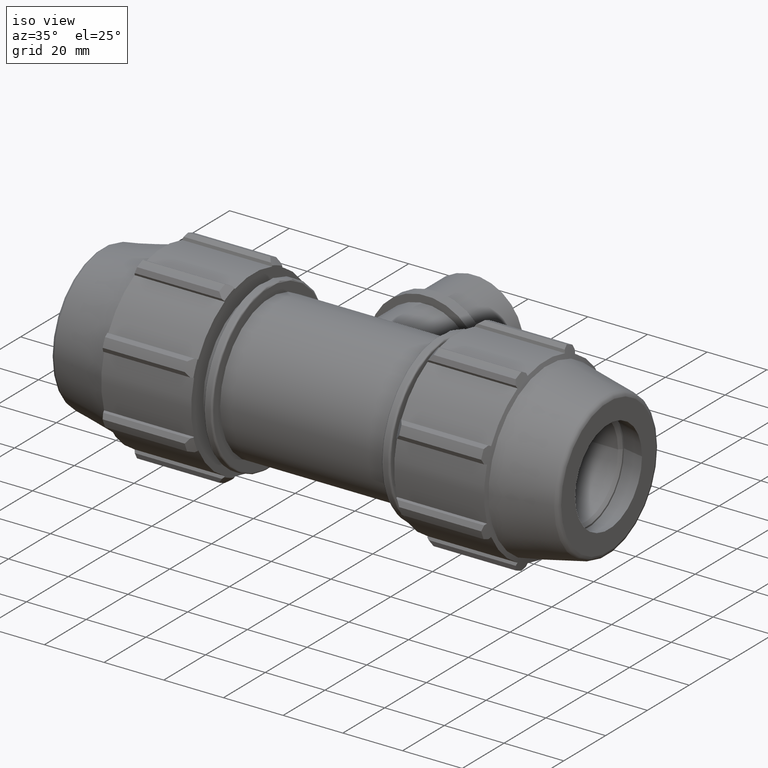
[diagram: clean part render]
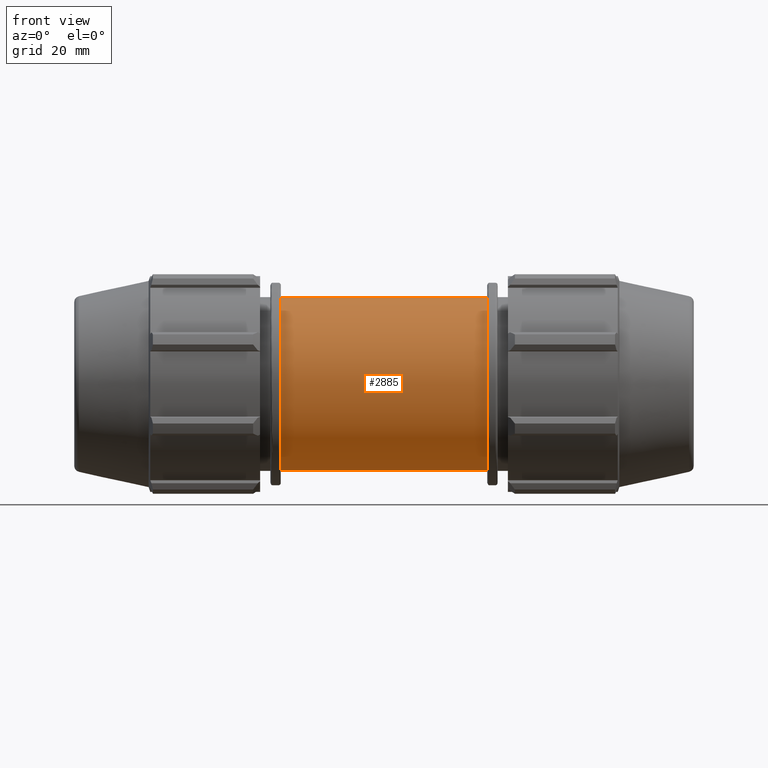
[diagram: tour spotlight — one face highlighted and labeled with its STEP entity id]
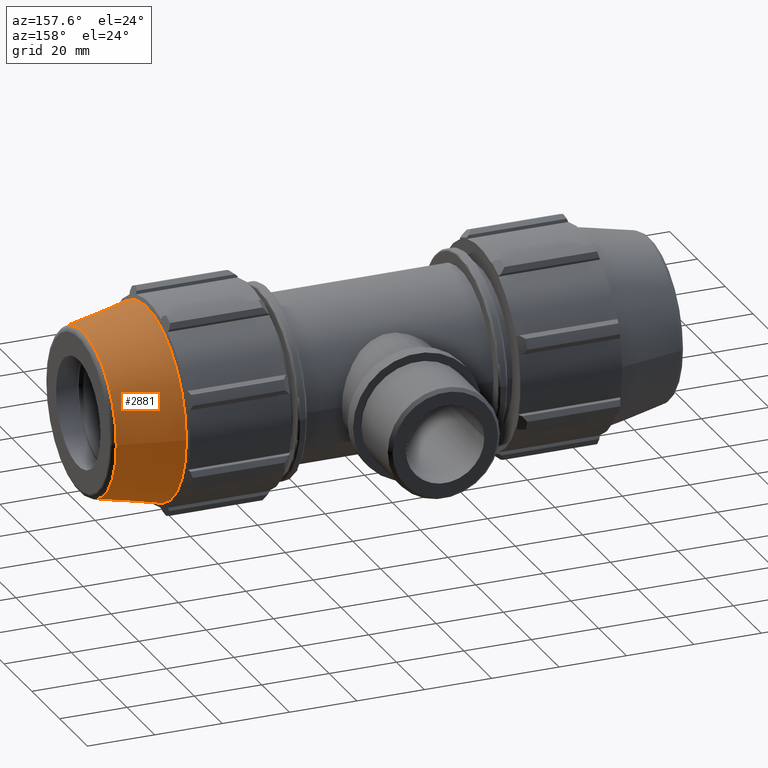
[diagram: tour spotlight — one face highlighted and labeled with its STEP entity id]
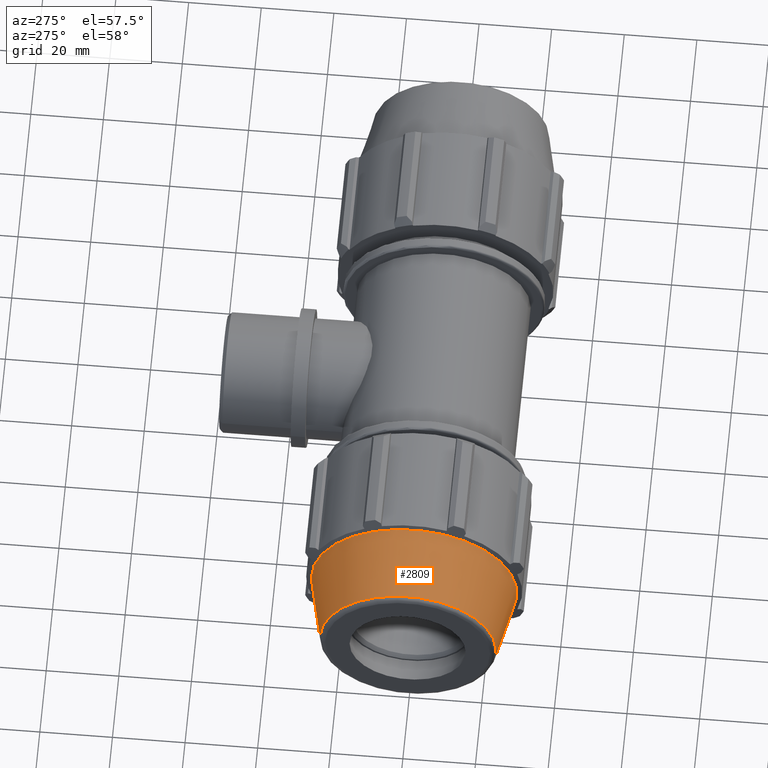
[diagram: tour spotlight — one face highlighted and labeled with its STEP entity id]
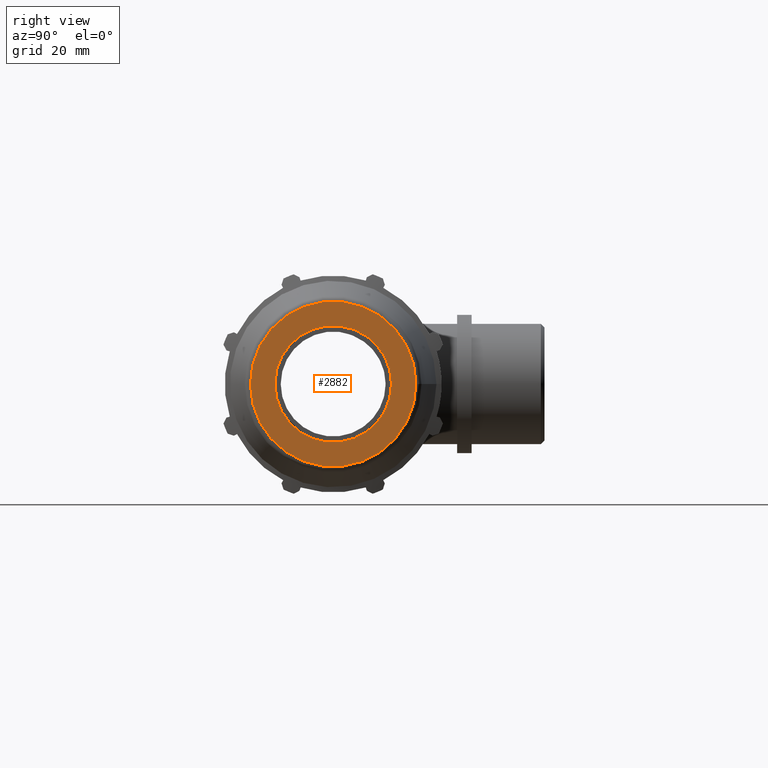
[diagram: tour spotlight — one face highlighted and labeled with its STEP entity id]
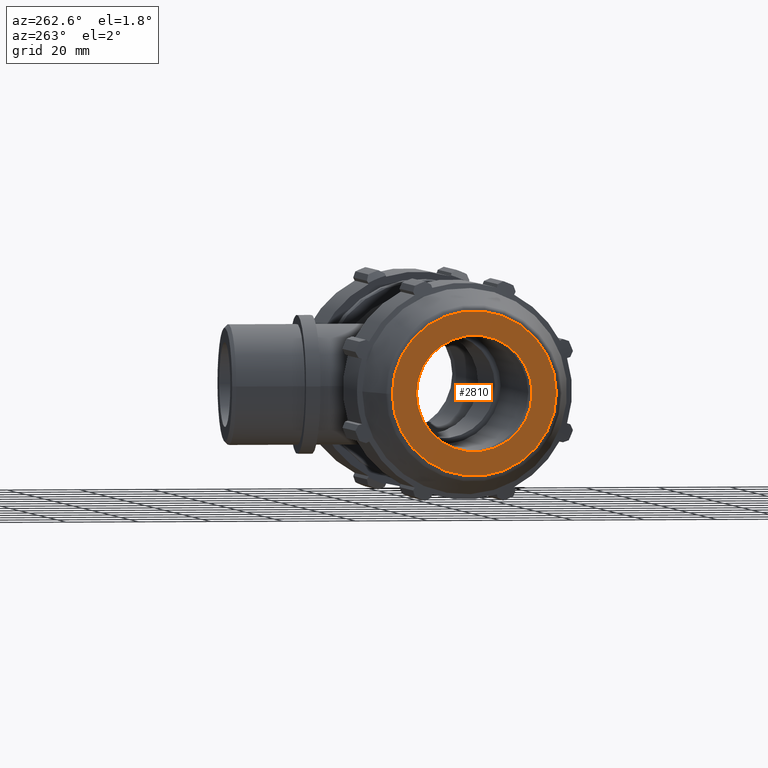
[diagram: tour spotlight — one face highlighted and labeled with its STEP entity id]
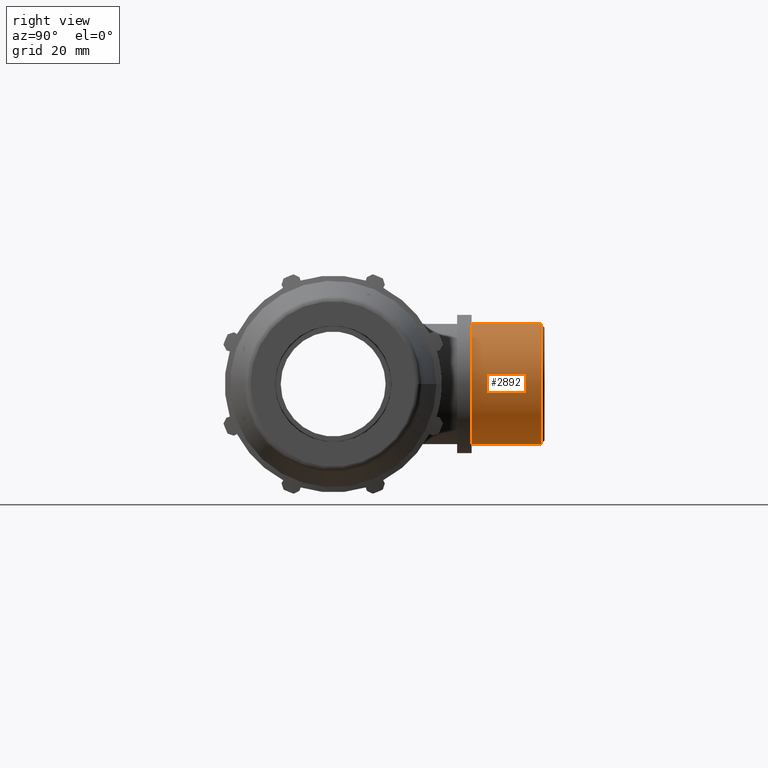
[diagram: tour spotlight — one face highlighted and labeled with its STEP entity id]
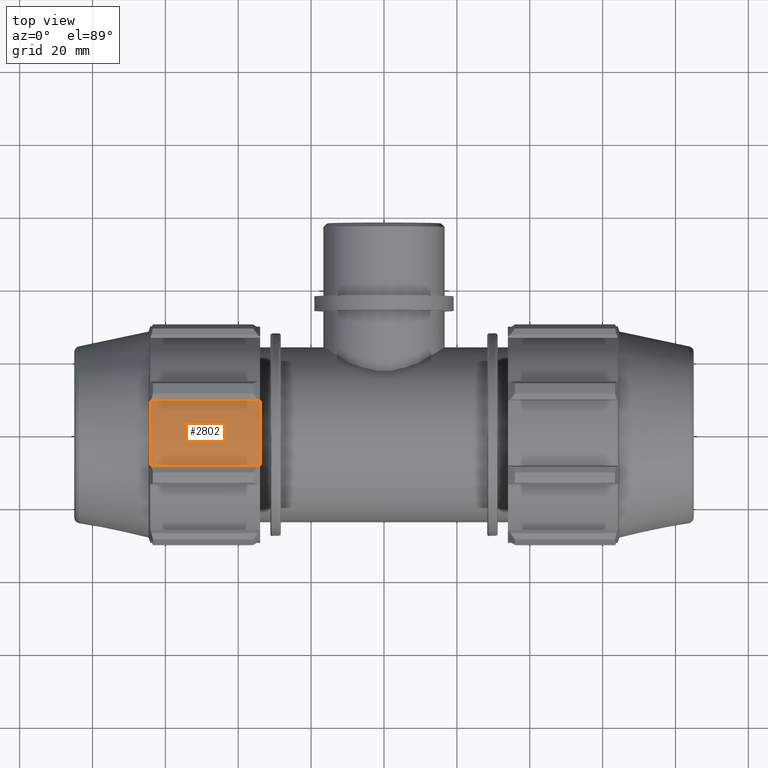
[diagram: tour spotlight — one face highlighted and labeled with its STEP entity id]
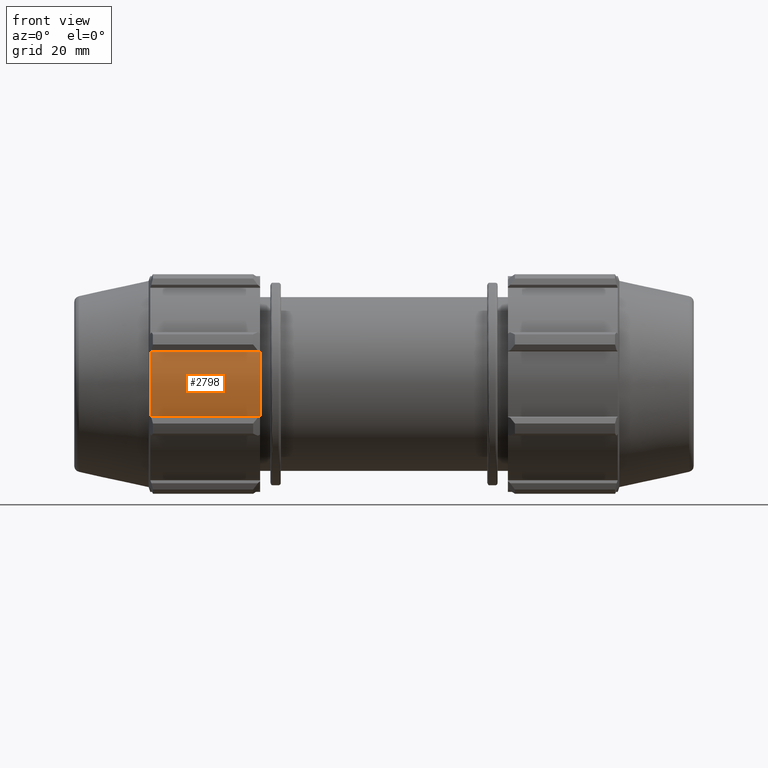
[diagram: tour spotlight — one face highlighted and labeled with its STEP entity id]
A machine part: a face-by-face anatomy tour. The part has 158 B-rep faces; the first image is the clean iso view, then the 8 largest visible faces are spotlighted one at a time (largest first), each with its STEP entity span.

Face 1 — front view, entity #2885. In plain terms, the highlighted cylindrical surface (bore or boss wall) has radius 24 mm, axis along (1, 0, 0).
Definition (entity closure, byte-faithful):
#217=CIRCLE('',#3003,24.);
#273=CIRCLE('',#3133,24.);
#733=FACE_BOUND('',#1082,.T.);
#734=FACE_BOUND('',#1083,.T.);
#890=FACE_OUTER_BOUND('',#1081,.T.);
#1081=EDGE_LOOP('',(#2500));
#1082=EDGE_LOOP('',(#2501));
#1083=EDGE_LOOP('',(#2502));
#1109=B_SPLINE_CURVE_WITH_KNOTS('',3,(#3989,#3990,#3991,#3992,#3993,#3994,
#3995,#3996,#3997,#3998,#3999,#4000,#4001,#4002,#4003,#4004,#4005,#4006,
#4007,#4008,#4009,#4010,#4011,#4012,#4013,#4014,#4015,#4016,#4017,#4018,
#4019,#4020,#4021,#4022,#4023,#4024,#4025,#4026,#4027,#4028,#4029,#4030),
 .UNSPECIFIED.,.T.,.F.,(4,2,2,2,2,2,2,2,2,2,2,2,2,2,2,2,2,2,2,2,4),(0.,
0.2236206117153,0.447241223430599,0.894482446861199,1.34066341931325,1.7868443917653,
2.23302536421735,2.6792063366694,3.1264475601,3.3500681718153,3.5736887835306,
3.7973093952459,4.0209300069612,4.4681712303918,4.91435220284385,5.3605331752959,
5.80671414774796,6.25289512020001,6.70013634363061,6.92375695534591,7.14737756706121),
 .UNSPECIFIED.);
#1114=VERTEX_POINT('',#3988);
#1238=VERTEX_POINT('',#4437);
#1366=VERTEX_POINT('',#4896);
#1384=EDGE_CURVE('',#1114,#1114,#1109,.T.);
#1555=EDGE_CURVE('',#1238,#1238,#217,.T.);
#1748=EDGE_CURVE('',#1366,#1366,#273,.T.);
#2500=ORIENTED_EDGE('',*,*,#1555,.T.);
#2501=ORIENTED_EDGE('',*,*,#1384,.T.);
#2502=ORIENTED_EDGE('',*,*,#1748,.F.);
#2574=CYLINDRICAL_SURFACE('',#3158,24.);
#2885=ADVANCED_FACE('',(#890,#733,#734),#2574,.T.);
#3003=AXIS2_PLACEMENT_3D('',#4438,#3472,#3473);
#3133=AXIS2_PLACEMENT_3D('',#4897,#3837,#3838);
#3158=AXIS2_PLACEMENT_3D('',#4926,#3887,#3888);
#3472=DIRECTION('center_axis',(1.,-4.75609664075873E-16,0.));
#3473=DIRECTION('ref_axis',(0.,0.,-1.));
#3837=DIRECTION('center_axis',(1.,4.75609664075873E-16,0.));
#3838=DIRECTION('ref_axis',(0.,0.,-1.));
#3887=DIRECTION('center_axis',(1.,4.75609664075873E-16,0.));
#3888=DIRECTION('ref_axis',(0.,1.,0.));
#3988=CARTESIAN_POINT('',(-2.35922392732846E-15,20.9899199588159,-11.63715));
#3989=CARTESIAN_POINT('Ctrl Pts',(-2.35922392732846E-15,20.9899199588159,
-11.63715));
#3990=CARTESIAN_POINT('Ctrl Pts',(0.745402039050997,20.9899199588159,-11.63715));
#3991=CARTESIAN_POINT('Ctrl Pts',(1.51116929376819,21.030783799884,-11.5644014620462));
#3992=CARTESIAN_POINT('Ctrl Pts',(3.02526404112938,21.1934531607997,-11.2635159437977));
#3993=CARTESIAN_POINT('Ctrl Pts',(3.7736430129756,21.3150002350371,-11.03549835819));
#3994=CARTESIAN_POINT('Ctrl Pts',(5.91652576739241,21.763049519081,-10.139795156789));
#3995=CARTESIAN_POINT('Ctrl Pts',(7.20799558906484,22.1727056891817,-9.24941976830522));
#3996=CARTESIAN_POINT('Ctrl Pts',(9.24700002044849,22.9169143462978,-7.21041533692157));
#3997=CARTESIAN_POINT('Ctrl Pts',(10.1391614597225,23.3044210441786,-5.91811210406171));
#3998=CARTESIAN_POINT('Ctrl Pts',(11.3348641933444,23.8489535673863,-3.05736909425999));
#3999=CARTESIAN_POINT('Ctrl Pts',(11.63715,24.,-1.48726990817351));
#4000=CARTESIAN_POINT('Ctrl Pts',(11.63715,24.,1.4872699081735));
#4001=CARTESIAN_POINT('Ctrl Pts',(11.3348641933444,23.8489535673863,3.05736909425999));
#4002=CARTESIAN_POINT('Ctrl Pts',(10.1391614597225,23.3044210441786,5.91811210406171));
#4003=CARTESIAN_POINT('Ctrl Pts',(9.2470000204485,22.9169143462978,7.21041533692156));
#4004=CARTESIAN_POINT('Ctrl Pts',(7.20799558906484,22.1727056891817,9.24941976830522));
#4005=CARTESIAN_POINT('Ctrl Pts',(5.91652576739241,21.763049519081,10.139795156789));
#4006=CARTESIAN_POINT('Ctrl Pts',(3.7736430129756,21.3150002350371,11.03549835819));
#4007=CARTESIAN_POINT('Ctrl Pts',(3.02526404112938,21.1934531607997,11.2635159437977));
#4008=CARTESIAN_POINT('Ctrl Pts',(1.51116929376819,21.030783799884,11.5644014620462));
#4009=CARTESIAN_POINT('Ctrl Pts',(0.745402039050997,20.9899199588159,11.63715));
#4010=CARTESIAN_POINT('Ctrl Pts',(-0.745402039051001,20.9899199588159,11.63715));
#4011=CARTESIAN_POINT('Ctrl Pts',(-1.51116929376819,21.030783799884,11.5644014620462));
#4012=CARTESIAN_POINT('Ctrl Pts',(-3.02526404112938,21.1934531607997,11.2635159437977));
#4013=CARTESIAN_POINT('Ctrl Pts',(-3.7736430129756,21.3150002350371,11.03549835819));
#4014=CARTESIAN_POINT('Ctrl Pts',(-5.91652576739241,21.763049519081,10.139795156789));
#4015=CARTESIAN_POINT('Ctrl Pts',(-7.20799558906484,22.1727056891817,9.24941976830522));
#4016=CARTESIAN_POINT('Ctrl Pts',(-9.2470000204485,22.9169143462978,7.21041533692157));
#4017=CARTESIAN_POINT('Ctrl Pts',(-10.1391614597225,23.3044210441786,5.91811210406172));
#4018=CARTESIAN_POINT('Ctrl Pts',(-11.3348641933444,23.8489535673863,3.05736909425999));
#4019=CARTESIAN_POINT('Ctrl Pts',(-11.63715,24.,1.48726990817351));
#4020=CARTESIAN_POINT('Ctrl Pts',(-11.63715,24.,-1.4872699081735));
#4021=CARTESIAN_POINT('Ctrl Pts',(-11.3348641933444,23.8489535673863,-3.05736909425999));
#4022=CARTESIAN_POINT('Ctrl Pts',(-10.1391614597225,23.3044210441786,-5.91811210406171));
#4023=CARTESIAN_POINT('Ctrl Pts',(-9.2470000204485,22.9169143462978,-7.21041533692156));
#4024=CARTESIAN_POINT('Ctrl Pts',(-7.20799558906484,22.1727056891817,-9.24941976830522));
#4025=CARTESIAN_POINT('Ctrl Pts',(-5.91652576739241,21.763049519081,-10.139795156789));
#4026=CARTESIAN_POINT('Ctrl Pts',(-3.7736430129756,21.3150002350371,-11.03549835819));
#4027=CARTESIAN_POINT('Ctrl Pts',(-3.02526404112938,21.1934531607997,-11.2635159437977));
#4028=CARTESIAN_POINT('Ctrl Pts',(-1.51116929376819,21.030783799884,-11.5644014620462));
#4029=CARTESIAN_POINT('Ctrl Pts',(-0.745402039051003,20.9899199588159,-11.63715));
#4030=CARTESIAN_POINT('Ctrl Pts',(-2.35922392732846E-15,20.9899199588159,
-11.63715));
#4437=CARTESIAN_POINT('',(-28.3333333333333,24.,0.));
#4438=CARTESIAN_POINT('Origin',(-28.3333333333334,1.34756071488164E-14,
0.));
#4896=CARTESIAN_POINT('',(28.3333333333333,24.,0.));
#4897=CARTESIAN_POINT('Origin',(28.3333333333334,1.34756071488164E-14,0.));
#4926=CARTESIAN_POINT('Origin',(14.1666666666667,6.73780357440821E-15,0.));

Face 2 — auxiliary view, entity #2881. In plain terms, the highlighted conical surface has half-angle 12 deg.
Definition (entity closure, byte-faithful):
#267=CIRCLE('',#3107,28.3361538580685);
#274=CIRCLE('',#3150,24.2693817080621);
#697=CONICAL_SURFACE('',#3152,26.1680769290342,12.);
#728=FACE_BOUND('',#1073,.T.);
#886=FACE_OUTER_BOUND('',#1072,.T.);
#1072=EDGE_LOOP('',(#2491));
#1073=EDGE_LOOP('',(#2492));
#1360=VERTEX_POINT('',#4843);
#1367=VERTEX_POINT('',#4914);
#1721=EDGE_CURVE('',#1360,#1360,#267,.T.);
#1749=EDGE_CURVE('',#1367,#1367,#274,.T.);
#2491=ORIENTED_EDGE('',*,*,#1721,.T.);
#2492=ORIENTED_EDGE('',*,*,#1749,.F.);
#2881=ADVANCED_FACE('',(#886,#728),#697,.T.);
#3107=AXIS2_PLACEMENT_3D('',#4844,#3764,#3765);
#3150=AXIS2_PLACEMENT_3D('',#4915,#3871,#3872);
#3152=AXIS2_PLACEMENT_3D('',#4918,#3875,#3876);
#3764=DIRECTION('center_axis',(1.,4.75609664075873E-16,0.));
#3765=DIRECTION('ref_axis',(0.,0.,-1.));
#3871=DIRECTION('center_axis',(1.,7.31933289759154E-16,-2.55977300822767E-31));
#3872=DIRECTION('ref_axis',(7.31933289759154E-16,-1.,3.06161699786839E-17));
#3875=DIRECTION('center_axis',(-1.,-4.75609664075873E-16,0.));
#3876=DIRECTION('ref_axis',(0.,1.,0.));
#4843=CARTESIAN_POINT('',(64.6,28.3361538580685,0.));
#4844=CARTESIAN_POINT('Origin',(64.6,3.07243842993014E-14,0.));
#4914=CARTESIAN_POINT('',(83.7326587053084,24.2693817080621,-1.48607103130318E-15));
#4915=CARTESIAN_POINT('Origin',(83.7326587053084,4.44089209850063E-14,-3.71517757825794E-15));
#4918=CARTESIAN_POINT('Origin',(74.8,3.55756028728753E-14,0.));

Face 3 — auxiliary view, entity #2809. In plain terms, the highlighted conical surface has half-angle 12 deg.
Definition (entity closure, byte-faithful):
#211=CIRCLE('',#2978,28.3361538580685);
#218=CIRCLE('',#3022,24.2693817080621);
#685=CONICAL_SURFACE('',#3024,26.1680769290342,12.);
#712=FACE_BOUND('',#985,.T.);
#814=FACE_OUTER_BOUND('',#984,.T.);
#984=EDGE_LOOP('',(#2125));
#985=EDGE_LOOP('',(#2126));
#1232=VERTEX_POINT('',#4392);
#1239=VERTEX_POINT('',#4466);
#1535=EDGE_CURVE('',#1232,#1232,#211,.T.);
#1565=EDGE_CURVE('',#1239,#1239,#218,.T.);
#2125=ORIENTED_EDGE('',*,*,#1535,.F.);
#2126=ORIENTED_EDGE('',*,*,#1565,.T.);
#2809=ADVANCED_FACE('',(#814,#712),#685,.T.);
#2978=AXIS2_PLACEMENT_3D('',#4393,#3408,#3409);
#3022=AXIS2_PLACEMENT_3D('',#4467,#3519,#3520);
#3024=AXIS2_PLACEMENT_3D('',#4470,#3523,#3524);
#3408=DIRECTION('center_axis',(1.,-4.75609664075873E-16,0.));
#3409=DIRECTION('ref_axis',(0.,0.,-1.));
#3519=DIRECTION('center_axis',(1.,-7.31933289759154E-16,2.55977300822767E-31));
#3520=DIRECTION('ref_axis',(-7.31933289759154E-16,-1.,3.06161699786839E-17));
#3523=DIRECTION('center_axis',(1.,-4.75609664075873E-16,0.));
#3524=DIRECTION('ref_axis',(0.,1.,0.));
#4392=CARTESIAN_POINT('',(-64.6,28.3361538580685,0.));
#4393=CARTESIAN_POINT('Origin',(-64.6,3.07243842993014E-14,0.));
#4466=CARTESIAN_POINT('',(-83.7326587053084,24.2693817080621,-1.48607103130318E-15));
#4467=CARTESIAN_POINT('Origin',(-83.7326587053084,4.44089209850063E-14,
-3.71517757825794E-15));
#4470=CARTESIAN_POINT('Origin',(-74.8,3.55756028728753E-14,0.));

Face 4 — right view, entity #2882. In plain terms, the highlighted planar face has unit normal (1, 0, 0).
Definition (entity closure, byte-faithful):
#95=PLANE('',#3153);
#275=CIRCLE('',#3151,22.704345546888);
#276=CIRCLE('',#3154,16.);
#729=FACE_BOUND('',#1075,.T.);
#887=FACE_OUTER_BOUND('',#1074,.T.);
#1074=EDGE_LOOP('',(#2493));
#1075=EDGE_LOOP('',(#2494));
#1368=VERTEX_POINT('',#4916);
#1369=VERTEX_POINT('',#4920);
#1750=EDGE_CURVE('',#1368,#1368,#275,.T.);
#1751=EDGE_CURVE('',#1369,#1369,#276,.T.);
#2493=ORIENTED_EDGE('',*,*,#1750,.F.);
#2494=ORIENTED_EDGE('',*,*,#1751,.F.);
#2882=ADVANCED_FACE('',(#887,#729),#95,.T.);
#3151=AXIS2_PLACEMENT_3D('',#4917,#3873,#3874);
#3153=AXIS2_PLACEMENT_3D('',#4919,#3877,#3878);
#3154=AXIS2_PLACEMENT_3D('',#4921,#3879,#3880);
#3873=DIRECTION('center_axis',(-1.,-4.75609664075873E-16,0.));
#3874=DIRECTION('ref_axis',(4.75609664075873E-16,-1.,1.83697019872103E-16));
#3877=DIRECTION('center_axis',(1.,4.75609664075873E-16,0.));
#3878=DIRECTION('ref_axis',(0.,0.,-1.));
#3879=DIRECTION('center_axis',(1.,4.75609664075873E-16,0.));
#3880=DIRECTION('ref_axis',(0.,0.,-1.));
#4916=CARTESIAN_POINT('',(85.,22.704345546888,-6.95120102518296E-15));
#4917=CARTESIAN_POINT('Origin',(85.,4.04268214464492E-14,0.));
#4919=CARTESIAN_POINT('Origin',(85.,16.,0.));
#4920=CARTESIAN_POINT('',(85.,16.,0.));
#4921=CARTESIAN_POINT('Origin',(85.,4.04268214464492E-14,0.));

Face 5 — auxiliary view, entity #2810. In plain terms, the highlighted planar face has unit normal (1, -0, 0).
Definition (entity closure, byte-faithful):
#57=PLANE('',#3025);
#219=CIRCLE('',#3023,22.704345546888);
#220=CIRCLE('',#3026,16.);
#713=FACE_BOUND('',#987,.T.);
#815=FACE_OUTER_BOUND('',#986,.T.);
#986=EDGE_LOOP('',(#2127));
#987=EDGE_LOOP('',(#2128));
#1240=VERTEX_POINT('',#4468);
#1241=VERTEX_POINT('',#4472);
#1566=EDGE_CURVE('',#1240,#1240,#219,.T.);
#1567=EDGE_CURVE('',#1241,#1241,#220,.T.);
#2127=ORIENTED_EDGE('',*,*,#1566,.T.);
#2128=ORIENTED_EDGE('',*,*,#1567,.T.);
#2810=ADVANCED_FACE('',(#815,#713),#57,.F.);
#3023=AXIS2_PLACEMENT_3D('',#4469,#3521,#3522);
#3025=AXIS2_PLACEMENT_3D('',#4471,#3525,#3526);
#3026=AXIS2_PLACEMENT_3D('',#4473,#3527,#3528);
#3521=DIRECTION('center_axis',(-1.,4.75609664075873E-16,0.));
#3522=DIRECTION('ref_axis',(-4.75609664075873E-16,-1.,1.83697019872103E-16));
#3525=DIRECTION('center_axis',(1.,-4.75609664075873E-16,0.));
#3526=DIRECTION('ref_axis',(0.,0.,-1.));
#3527=DIRECTION('center_axis',(1.,-4.75609664075873E-16,0.));
#3528=DIRECTION('ref_axis',(0.,0.,-1.));
#4468=CARTESIAN_POINT('',(-85.,22.704345546888,-6.95120102518296E-15));
#4469=CARTESIAN_POINT('Origin',(-85.,4.04268214464492E-14,0.));
#4471=CARTESIAN_POINT('Origin',(-85.,16.,0.));
#4472=CARTESIAN_POINT('',(-85.,16.,0.));
#4473=CARTESIAN_POINT('Origin',(-85.,4.04268214464492E-14,0.));

Face 6 — right view, entity #2892. In plain terms, the highlighted cylindrical surface (bore or boss wall) has radius 16.6245 mm, axis along (-0, 1, 0).
Definition (entity closure, byte-faithful):
#280=CIRCLE('',#3167,16.6245);
#282=CIRCLE('',#3170,16.6245);
#739=FACE_BOUND('',#1095,.T.);
#897=FACE_OUTER_BOUND('',#1094,.T.);
#1094=EDGE_LOOP('',(#2518));
#1095=EDGE_LOOP('',(#2519));
#1376=VERTEX_POINT('',#5052);
#1378=VERTEX_POINT('',#5057);
#1760=EDGE_CURVE('',#1376,#1376,#280,.T.);
#1762=EDGE_CURVE('',#1378,#1378,#282,.T.);
#2518=ORIENTED_EDGE('',*,*,#1762,.T.);
#2519=ORIENTED_EDGE('',*,*,#1760,.F.);
#2577=CYLINDRICAL_SURFACE('',#3169,16.6245);
#2892=ADVANCED_FACE('',(#897,#739),#2577,.T.);
#3167=AXIS2_PLACEMENT_3D('',#5053,#3907,#3908);
#3169=AXIS2_PLACEMENT_3D('',#5056,#3911,#3912);
#3170=AXIS2_PLACEMENT_3D('',#5058,#3913,#3914);
#3907=DIRECTION('center_axis',(-1.22464679914735E-16,1.,0.));
#3908=DIRECTION('ref_axis',(1.,0.,0.));
#3911=DIRECTION('center_axis',(-1.22464679914735E-16,1.,0.));
#3912=DIRECTION('ref_axis',(-1.,0.,0.));
#3913=DIRECTION('center_axis',(-1.22464679914735E-16,1.,0.));
#3914=DIRECTION('ref_axis',(1.,1.22464679914735E-16,0.));
#5052=CARTESIAN_POINT('',(-16.6245,57.00253,2.03591407124252E-15));
#5053=CARTESIAN_POINT('Origin',(-6.9807965907801E-15,57.00253,0.));
#5056=CARTESIAN_POINT('Origin',(-5.8783046359073E-15,48.,0.));
#5057=CARTESIAN_POINT('',(-16.6245,38.,0.));
#5058=CARTESIAN_POINT('Origin',(-4.65365783675994E-15,38.,0.));

Face 7 — top view, entity #2802. In plain terms, the highlighted cylindrical surface (partial cylindrical patch) has radius 29.76 mm, axis along (1, 0, -0).
Definition (entity closure, byte-faithful):
#182=CIRCLE('',#2921,29.76);
#207=CIRCLE('',#2974,29.76);
#349=LINE('',#4305,#543);
#379=LINE('',#4455,#573);
#543=VECTOR('',#3349,30.1373643440812);
#573=VECTOR('',#3501,30.1373643440812);
#807=FACE_OUTER_BOUND('',#976,.T.);
#976=EDGE_LOOP('',(#2096,#2097,#2098,#2099));
#1149=VERTEX_POINT('',#4105);
#1150=VERTEX_POINT('',#4107);
#1203=VERTEX_POINT('',#4303);
#1226=VERTEX_POINT('',#4375);
#1420=EDGE_CURVE('',#1149,#1150,#182,.T.);
#1497=EDGE_CURVE('',#1149,#1203,#349,.T.);
#1527=EDGE_CURVE('',#1226,#1203,#207,.T.);
#1561=EDGE_CURVE('',#1150,#1226,#379,.T.);
#2096=ORIENTED_EDGE('',*,*,#1527,.F.);
#2097=ORIENTED_EDGE('',*,*,#1561,.F.);
#2098=ORIENTED_EDGE('',*,*,#1420,.F.);
#2099=ORIENTED_EDGE('',*,*,#1497,.T.);
#2551=CYLINDRICAL_SURFACE('',#3015,29.76);
#2802=ADVANCED_FACE('',(#807),#2551,.T.);
#2921=AXIS2_PLACEMENT_3D('',#4108,#3238,#3239);
#2974=AXIS2_PLACEMENT_3D('',#4377,#3397,#3398);
#3015=AXIS2_PLACEMENT_3D('',#4456,#3502,#3503);
#3238=DIRECTION('center_axis',(1.,-4.75609664075873E-16,0.));
#3239=DIRECTION('ref_axis',(-4.52027734295035E-16,0.300705799504273,-0.953716950748227));
#3349=DIRECTION('',(-1.,0.,4.73964244779756E-16));
#3397=DIRECTION('center_axis',(-1.,0.,4.73964244779756E-16));
#3398=DIRECTION('ref_axis',(-4.52027734295035E-16,0.300705799504273,-0.953716950748227));
#3501=DIRECTION('',(-1.,0.,4.73964244779756E-16));
#3502=DIRECTION('center_axis',(1.,0.,-4.73964244779756E-16));
#3503=DIRECTION('ref_axis',(-4.52027734295035E-16,0.300705799504273,-0.953716950748227));
#4105=CARTESIAN_POINT('',(-34.,8.94900459324719,28.3826164542672));
#4107=CARTESIAN_POINT('',(-34.,-8.94900459324714,28.3826164542672));
#4108=CARTESIAN_POINT('Origin',(-34.,2.31644603032038E-14,-6.99373172462414E-15));
#4303=CARTESIAN_POINT('',(-64.1373643440812,8.94900459324719,28.3826164542672));
#4305=CARTESIAN_POINT('',(-34.,8.94900459324719,28.3826164542672));
#4375=CARTESIAN_POINT('',(-64.1373643440812,-8.94900459324715,28.3826164542673));
#4377=CARTESIAN_POINT('Origin',(-64.1373643440812,2.31644603032038E-14,
7.29030140637067E-15));
#4455=CARTESIAN_POINT('',(-34.,-8.94900459324714,28.3826164542672));
#4456=CARTESIAN_POINT('Origin',(-34.,2.31644603032038E-14,-6.99373172462413E-15));

Face 8 — front view, entity #2798. In plain terms, the highlighted cylindrical surface (partial cylindrical patch) has radius 29.76 mm, axis along (1, 0, -0).
Definition (entity closure, byte-faithful):
#170=CIRCLE('',#2909,29.76);
#203=CIRCLE('',#2970,29.76);
#313=LINE('',#4143,#507);
#377=LINE('',#4449,#571);
#507=VECTOR('',#3261,30.1373643440812);
#571=VECTOR('',#3491,30.1373643440812);
#803=FACE_OUTER_BOUND('',#972,.T.);
#972=EDGE_LOOP('',(#2078,#2079,#2080,#2081));
#1125=VERTEX_POINT('',#4057);
#1126=VERTEX_POINT('',#4059);
#1160=VERTEX_POINT('',#4141);
#1220=VERTEX_POINT('',#4357);
#1396=EDGE_CURVE('',#1125,#1126,#170,.T.);
#1435=EDGE_CURVE('',#1125,#1160,#313,.T.);
#1519=EDGE_CURVE('',#1220,#1160,#203,.T.);
#1559=EDGE_CURVE('',#1126,#1220,#377,.T.);
#2078=ORIENTED_EDGE('',*,*,#1519,.F.);
#2079=ORIENTED_EDGE('',*,*,#1559,.F.);
#2080=ORIENTED_EDGE('',*,*,#1396,.F.);
#2081=ORIENTED_EDGE('',*,*,#1435,.T.);
#2549=CYLINDRICAL_SURFACE('',#3011,29.76);
#2798=ADVANCED_FACE('',(#803),#2549,.T.);
#2909=AXIS2_PLACEMENT_3D('',#4060,#3202,#3203);
#2970=AXIS2_PLACEMENT_3D('',#4359,#3387,#3388);
#3011=AXIS2_PLACEMENT_3D('',#4450,#3492,#3493);
#3202=DIRECTION('center_axis',(1.,-4.75609664075873E-16,0.));
#3203=DIRECTION('ref_axis',(-4.52027734295035E-16,0.953716950748227,0.300705799504273));
#3261=DIRECTION('',(-1.,-4.73964244779756E-16,9.86076131526265E-32));
#3387=DIRECTION('center_axis',(-1.,-4.73964244779756E-16,9.86076131526265E-32));
#3388=DIRECTION('ref_axis',(-4.52027734295035E-16,0.953716950748227,0.300705799504273));
#3491=DIRECTION('',(-1.,-4.73964244779756E-16,9.86076131526265E-32));
#3492=DIRECTION('center_axis',(1.,4.73964244779756E-16,-9.86076131526265E-32));
#3493=DIRECTION('ref_axis',(-4.52027734295035E-16,0.953716950748227,0.300705799504273));
#4057=CARTESIAN_POINT('',(-34.,-28.3826164542672,8.94900459324717));
#4059=CARTESIAN_POINT('',(-34.,-28.3826164542672,-8.94900459324717));
#4060=CARTESIAN_POINT('Origin',(-34.,3.0158192027828E-14,-1.97215226305253E-30));
#4141=CARTESIAN_POINT('',(-64.1373643440812,-28.3826164542672,8.94900459324717));
#4143=CARTESIAN_POINT('',(-34.,-28.3826164542672,8.94900459324717));
#4357=CARTESIAN_POINT('',(-64.1373643440812,-28.3826164542672,-8.94900459324717));
#4359=CARTESIAN_POINT('Origin',(-64.1373643440812,1.58741588968332E-14,
9.99621301628389E-31));
#4449=CARTESIAN_POINT('',(-34.,-28.3826164542672,-8.94900459324717));
#4450=CARTESIAN_POINT('Origin',(-34.,3.0158192027828E-14,-1.97215226305253E-30));